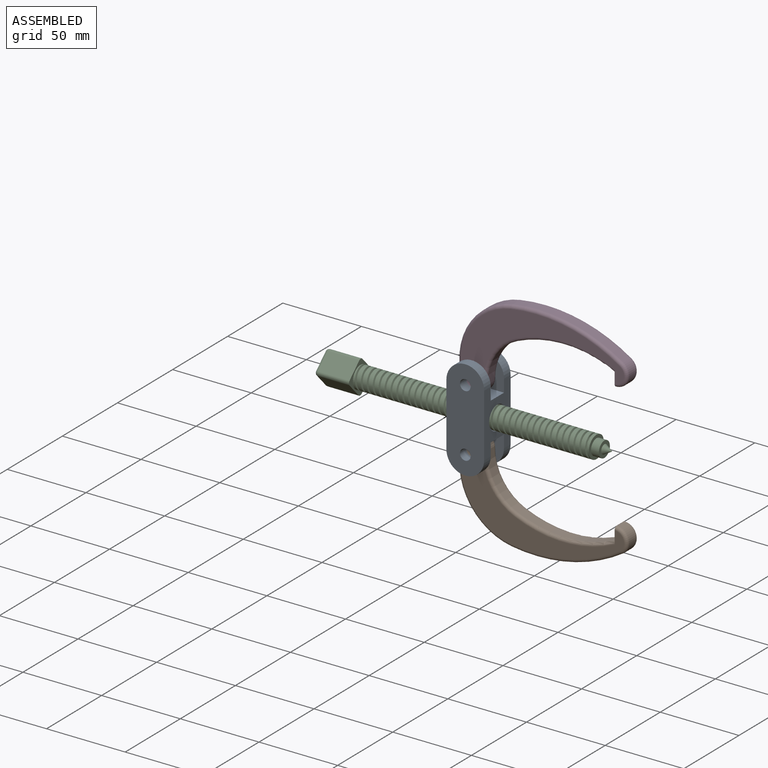
[diagram: assembled view]
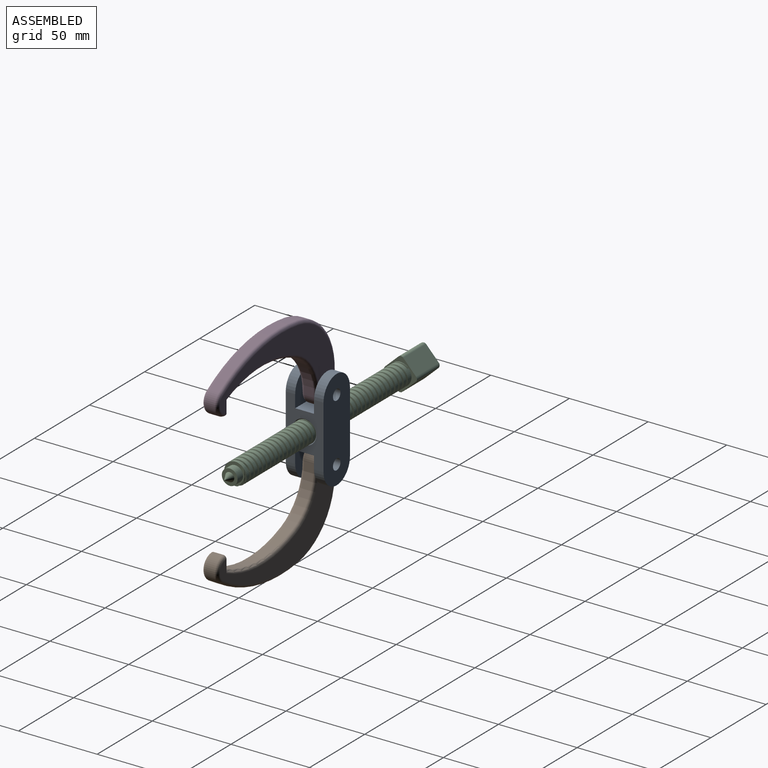
[diagram: assembled view, second angle]
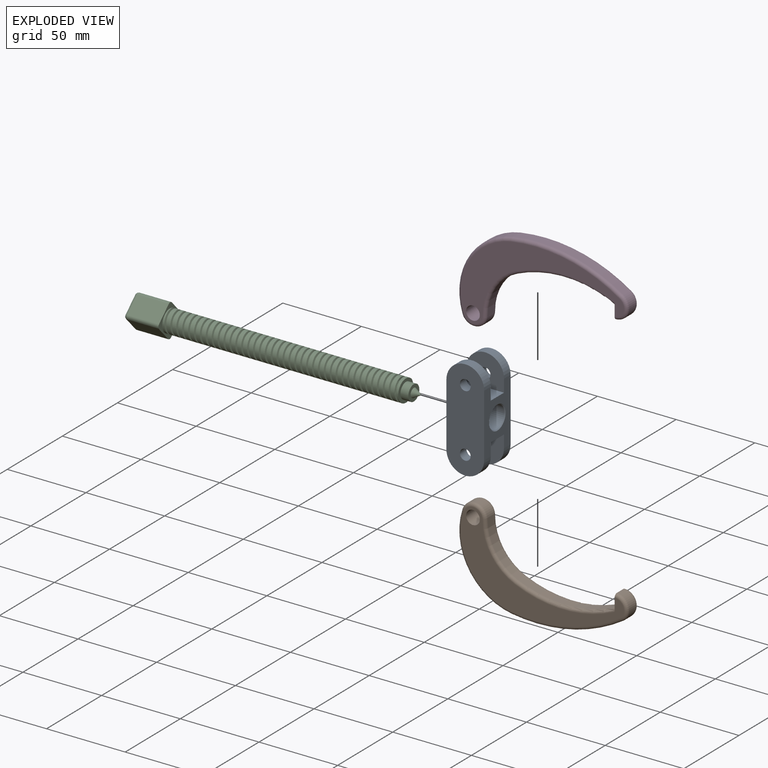
[diagram: exploded view]
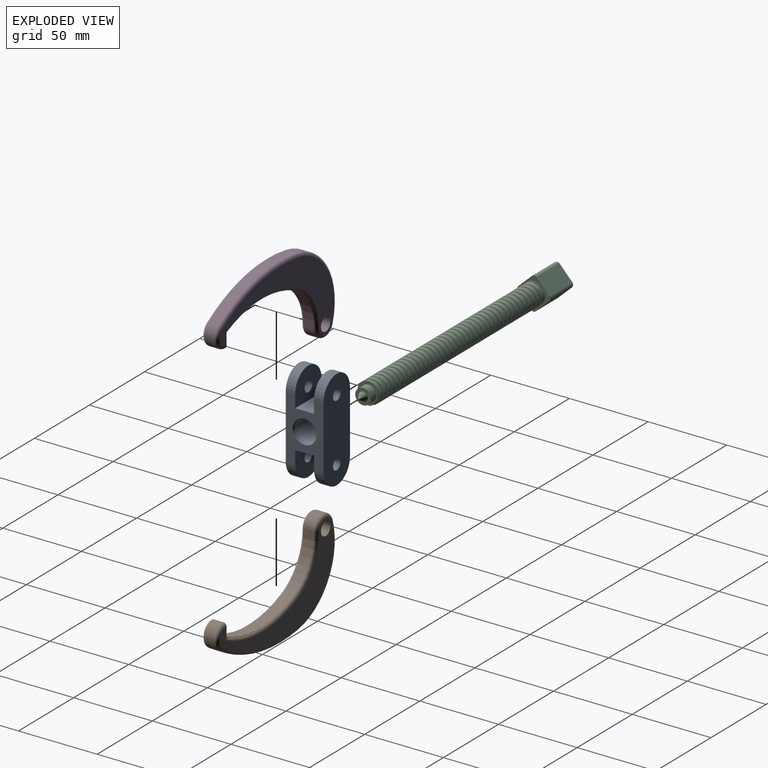
[diagram: exploded view, second angle]
ASSEMBLY  parts=4 mates=3
PART A: 21 faces, bbox 24x24x64 mm
  f0: plane 24x20mm, normal (0,-1,0), area 381.9mm2, adj f1,f8,f9,f13,f15
  f1: plane 24x12mm, normal (0,0,1), area 288mm2, adj f0,f2,f8,f9
  f2: plane 24x20mm, normal (0,1,0), area 381.9mm2, adj f1,f8,f9,f12,f16
  f3: plane 64x24mm, normal (0,-1,0), area 1339.8mm2, adj f8,f9,f11,f12,f16,f18
  f4: plane 24x20mm, normal (0,1,0), area 381.9mm2, adj f5,f8,f9,f11,f18
  f5: plane 24x12mm, normal (0,0,-1), area 288mm2, adj f4,f6,f8,f9
  f6: plane 24x20mm, normal (0,-1,0), area 381.9mm2, adj f5,f8,f9,f10,f17
  f7: plane 64x24mm, normal (0,1,0), area 1339.8mm2, adj f8,f9,f10,f13,f15,f17
  f8: plane 40x24mm, normal (1,0,0), area 591.3mm2, adj f0,f1,f2,f3,f4,f5,f6,f7
  f9: plane 40x24mm, normal (-1,0,0), area 591.3mm2, adj f0,f1,f2,f3,f4,f5,f6,f7
  f10: cylinder r=12mm len=24mm, axis (0,-1,0), area 226.2mm2, adj f6,f7,f8,f9
  f11: cylinder r=12mm len=24mm, axis (0,-1,0), area 226.2mm2, adj f3,f4,f8,f9
  f12: cylinder r=12mm len=24mm, axis (0,1,0), area 226.2mm2, adj f2,f3,f8,f9
  f13: cylinder r=12mm len=24mm, axis (0,1,0), area 226.2mm2, adj f0,f7,f8,f9
  f14: cylinder r=7mm len=23mm, axis (1,0,0), area 1011.6mm2, adj f19,f20
  f15: cylinder r=3.4mm len=6.8mm, axis (0,-1,0), area 128.2mm2, adj f0,f7
  f16: cylinder r=3.4mm len=6.8mm, axis (0,-1,0), area 128.2mm2, adj f2,f3
  f17: cylinder r=3.4mm len=6.8mm, axis (0,-1,0), area 128.2mm2, adj f6,f7
  f18: cylinder r=3.4mm len=6.8mm, axis (0,-1,0), area 128.2mm2, adj f3,f4
  f19: cone r=7.5mm half-angle=45deg, axis (-1,0,0), area 32.2mm2, adj f9,f14
  f20: cone r=7mm half-angle=45deg, axis (1,0,0), area 32.2mm2, adj f8,f14
PART B: 22 faces, bbox 111.7x10x67.7 mm
  f0: cylinder r=32mm len=29.34mm, axis (0,1,0), area 222.8mm2, adj f1,f6,f11,f17
  f1: cylinder r=8mm len=15.6mm, axis (0,1,0), area 135.5mm2, adj f0,f2,f12,f18
  f2: cylinder r=40mm len=51.98mm, axis (0,1,0), area 414.7mm2, adj f1,f3,f13,f19
  f3: cylinder r=100mm len=70.35mm, axis (0,1,0), area 441.2mm2, adj f2,f4,f14,f20
  f4: cylinder r=8mm len=14.72mm, axis (0,1,0), area 123.2mm2, adj f3,f5,f15,f21
  f5: plane 10.22x10mm, normal (-1,0,0), area 80.2mm2, adj f4,f6,f7,f8,f10,f15,f16,f21
  f6: cylinder r=75mm len=62.77mm, axis (0,1,0), area 388.7mm2, adj f0,f5,f10,f16
  f7: plane 103.6x54.77mm, normal (0,-1,0), area 1544.8mm2, adj f5,f9,f16,f17,f18,f19,f20,f21
  f8: plane 103.6x54.77mm, normal (0,1,0), area 1544.8mm2, adj f5,f9,f10,f11,f12,f13,f14,f15
  f9: cylinder r=4.35mm len=10mm, axis (0,1,0), area 273.3mm2, adj f7,f8
  f10: torus R=77mm, axis (0,-1,0), area 204.4mm2, adj f5,f6,f8,f11
  f11: torus R=34mm, axis (0,-1,0), area 119.3mm2, adj f0,f8,f10,f12
  f12: torus R=6mm, axis (0,-1,0), area 64.5mm2, adj f1,f8,f11,f13
  f13: torus R=38mm, axis (0,-1,0), area 213.2mm2, adj f2,f8,f12,f14
  f14: torus R=98mm, axis (0,-1,0), area 229.3mm2, adj f3,f8,f13,f15
  f15: torus R=6mm, axis (0,-1,0), area 58.7mm2, adj f4,f5,f8,f14
  f16: torus R=77mm, axis (0,-1,0), area 204.4mm2, adj f5,f6,f7,f17
  f17: torus R=34mm, axis (0,-1,0), area 119.3mm2, adj f0,f7,f16,f18
  f18: torus R=6mm, axis (0,-1,0), area 64.5mm2, adj f1,f7,f17,f19
  f19: torus R=38mm, axis (0,-1,0), area 213.2mm2, adj f2,f7,f18,f20
  f20: torus R=98mm, axis (0,-1,0), area 229.3mm2, adj f3,f7,f19,f21
  f21: torus R=6mm, axis (0,-1,0), area 58.7mm2, adj f4,f5,f7,f20
PART C: 27 faces, bbox 16.3x182.1x16.1 mm
  f0: cylinder r=7mm len=150mm, axis (0,-1,0), area -977.9mm2, adj f6,f7,f23,f24,f26
  f1: plane 20x12mm, normal (1,0,0), area 240mm2, adj f6,f13,f19,f22
  f2: plane 20x12mm, normal (0,0,1), area 240mm2, adj f6,f16,f20,f22
  f3: plane 20x12mm, normal (-1,0,0), area 240mm2, adj f6,f11,f15,f16
  f4: plane 20x12mm, normal (0,0,-1), area 240mm2, adj f6,f11,f13,f14
  f5: plane 12x12mm, normal (0,-1,0), area 144mm2, adj f14,f15,f19,f20
  f6: plane 16x16mm, normal (0,1,0), area 98.6mm2, adj f0,f1,f2,f3,f4,f11,f13,f16
  f7: plane 14.14x13.33mm, normal (0,1,0), area 62.9mm2, adj f0,f8,f24,f25,f26
  f8: cylinder r=5mm len=10mm, axis (0,-1,0), area 157.1mm2, adj f7,f9
  f9: plane 10x10mm, normal (0,1,0), area 52.4mm2, adj f8,f10
  f10: cone r=0mm half-angle=30deg, axis (0,-1,0), area 52.4mm2, adj f9
  f11: cylinder r=2mm len=20mm, axis (0,-1,0), area 62.8mm2, adj f3,f4,f6,f12
  f12: sphere r=2mm, area 6.3mm2, adj f11,f14,f15
  f13: cylinder r=2mm len=20mm, axis (0,1,0), area 62.8mm2, adj f1,f4,f6,f17
  f14: cylinder r=2mm len=12mm, axis (-1,0,0), area 37.7mm2, adj f4,f5,f12,f17
  f15: cylinder r=2mm len=12mm, axis (0,0,1), area 37.7mm2, adj f3,f5,f12,f18
  f16: cylinder r=2mm len=20mm, axis (0,1,0), area 62.8mm2, adj f2,f3,f6,f18
  f17: sphere r=2mm, area 6.3mm2, adj f13,f14,f19
  f18: sphere r=2mm, area 6.3mm2, adj f15,f16,f20
  f19: cylinder r=2mm len=12mm, axis (0,0,-1), area 37.7mm2, adj f1,f5,f17,f21
  f20: cylinder r=2mm len=12mm, axis (1,0,0), area 37.7mm2, adj f2,f5,f18,f21
  f21: sphere r=2mm, area 6.3mm2, adj f19,f20,f22
  f22: cylinder r=2mm len=20mm, axis (0,-1,0), area 62.8mm2, adj f1,f2,f6,f21
  f23: plane 1.26x1.25mm, normal (-1,0,0), area 1.2mm2, adj f0,f24,f25,f26
  f24: bspline ~149.39x14mm, area 2062mm2, adj f0,f7,f23,f25
  f25: cylinder r=5.75mm len=149.68mm, axis (0,-1,0), area 1075.1mm2, adj f7,f23,f24,f26
  f26: bspline ~150.32x16.17mm, area 1997.3mm2, adj f0,f7,f23,f25
PART D: same geometry as B
PLACE A t=(-0.45,-0.1,0.07)mm fixed
PLACE B t=(-0.45,-0.1,-19.93)mm
PLACE C rot(axis=(0.68,0.68,-0.29),147.4deg) t=(-75.45,-0.1,0.07)mm
PLACE D rot(axis=(1,0,0),180deg) t=(-0.45,-0.1,20.07)mm
MATE revolute D.f1 <-> A.f13  axis (0,-1,0) through (-0.45,-0.1,20.07)mm
MATE revolute C.f0 <-> A.f14  axis (-1,0,0) through (-0.45,-0.1,0.07)mm
MATE revolute B.f1 <-> A.f11  axis (0,1,0) through (-0.45,-0.1,-19.93)mm
